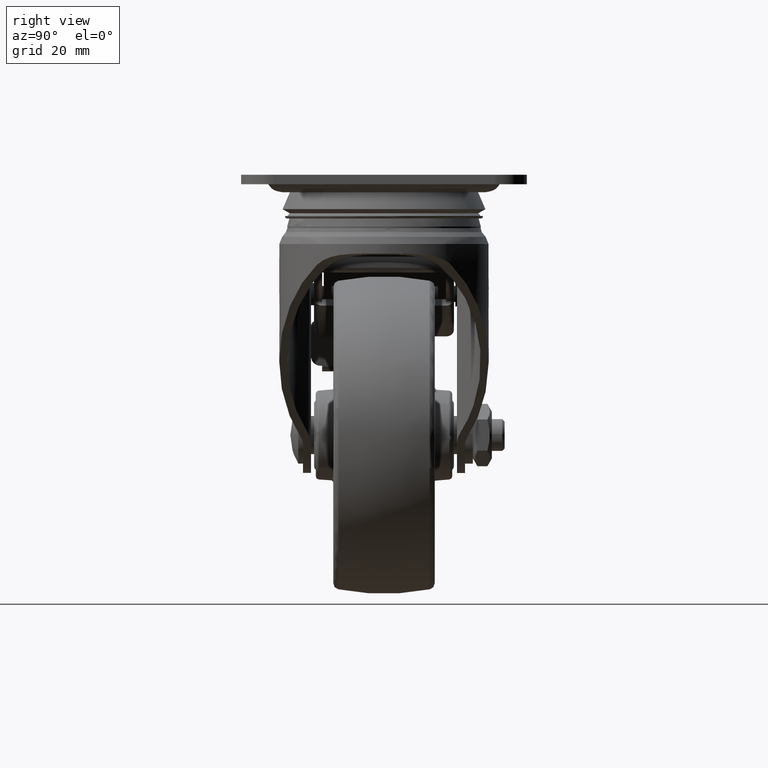
[diagram: clean part render]
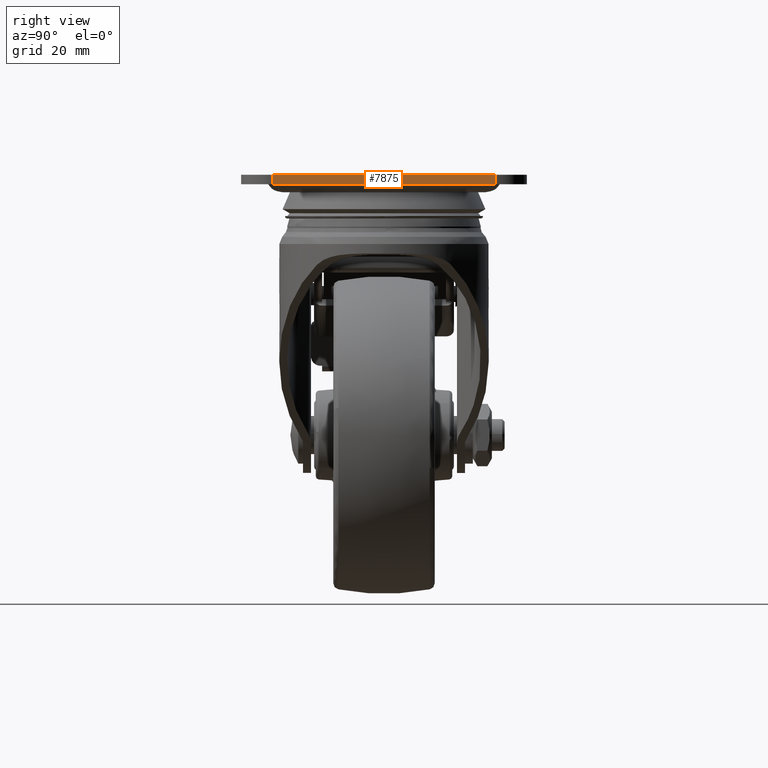
[diagram: same view with one face highlighted and labeled with its STEP entity id]
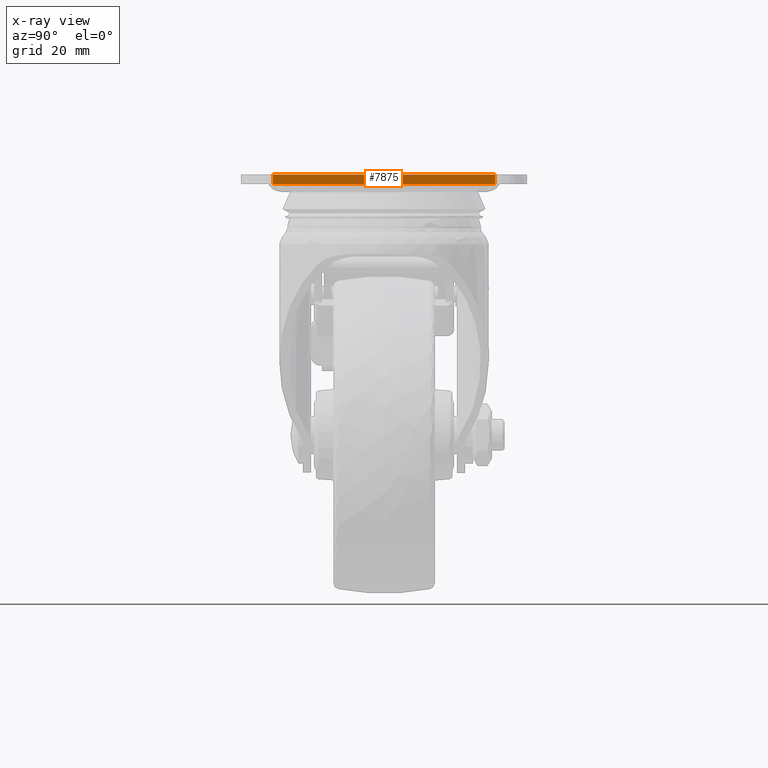
[diagram: x-ray of the same camera — body ghosted, the highlighted face saturated]
A machine part, right view. The second image highlights one B-rep face of the part: STEP entity #7875.
The next image is the same camera in x-ray: the body ghosted, the highlighted face saturated — about 0% of this face is hidden behind the body in this view.
In plain terms, the highlighted face is a freeform B-spline surface patch.
Its self-contained STEP definition (entity closure, byte-faithful):
#6772=CARTESIAN_POINT('',(45.0,35.0,-3.0));
#6773=VERTEX_POINT('',#6772);
#6788=CARTESIAN_POINT('',(45.0,-35.0,-3.0));
#6789=VERTEX_POINT('',#6788);
#6790=CARTESIAN_POINT('',(45.0,-35.0,-3.0));
#6791=CARTESIAN_POINT('',(45.0,35.0,-3.0));
#6792=QUASI_UNIFORM_CURVE('',1,(#6790,#6791),.UNSPECIFIED.,.F.,.U.);
#6793=EDGE_CURVE('',#6789,#6773,#6792,.T.);
#7830=CARTESIAN_POINT('',(45.0,-35.0,0.0));
#7831=VERTEX_POINT('',#7830);
#7832=CARTESIAN_POINT('',(45.0,-35.0,-3.0));
#7833=CARTESIAN_POINT('',(45.0,-35.0,0.0));
#7834=QUASI_UNIFORM_CURVE('',1,(#7832,#7833),.UNSPECIFIED.,.F.,.U.);
#7835=EDGE_CURVE('',#6789,#7831,#7834,.T.);
#7854=CARTESIAN_POINT('',(45.0,-38.496499864326417,-3.149849994185419));
#7855=CARTESIAN_POINT('',(45.0,38.496501741872727,-3.149849994185419));
#7856=CARTESIAN_POINT('',(45.0,-38.496499864326417,0.149850074651688));
#7857=CARTESIAN_POINT('',(45.0,38.496501741872727,0.149850074651688));
#7858=B_SPLINE_SURFACE_WITH_KNOTS('',1,1,((#7854,#7856),(#7855,#7857)),.UNSPECIFIED.,.F.,.F.,.U.,(2,2),(2,2),(0.0,76.993001606199158),(0.0,3.299700068837107),.UNSPECIFIED.);
#7859=ORIENTED_EDGE('',*,*,#6793,.T.);
#7860=CARTESIAN_POINT('',(45.0,35.0,0.0));
#7861=VERTEX_POINT('',#7860);
#7862=CARTESIAN_POINT('',(45.0,35.0,-3.0));
#7863=CARTESIAN_POINT('',(45.0,35.0,0.0));
#7864=QUASI_UNIFORM_CURVE('',1,(#7862,#7863),.UNSPECIFIED.,.F.,.U.);
#7865=EDGE_CURVE('',#6773,#7861,#7864,.T.);
#7866=ORIENTED_EDGE('',*,*,#7865,.T.);
#7867=CARTESIAN_POINT('',(45.0,-35.0,0.0));
#7868=CARTESIAN_POINT('',(45.0,35.0,0.0));
#7869=QUASI_UNIFORM_CURVE('',1,(#7867,#7868),.UNSPECIFIED.,.F.,.U.);
#7870=EDGE_CURVE('',#7831,#7861,#7869,.T.);
#7871=ORIENTED_EDGE('',*,*,#7870,.F.);
#7872=ORIENTED_EDGE('',*,*,#7835,.F.);
#7873=EDGE_LOOP('',(#7859,#7866,#7871,#7872));
#7874=FACE_OUTER_BOUND('',#7873,.T.);
#7875=ADVANCED_FACE('',(#7874),#7858,.T.);